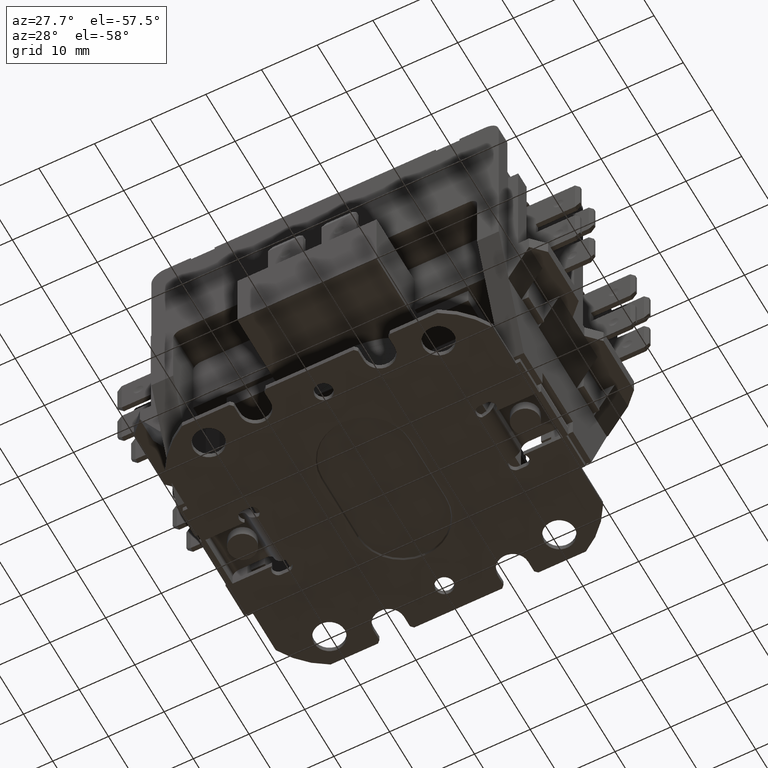
[diagram: clean part render]
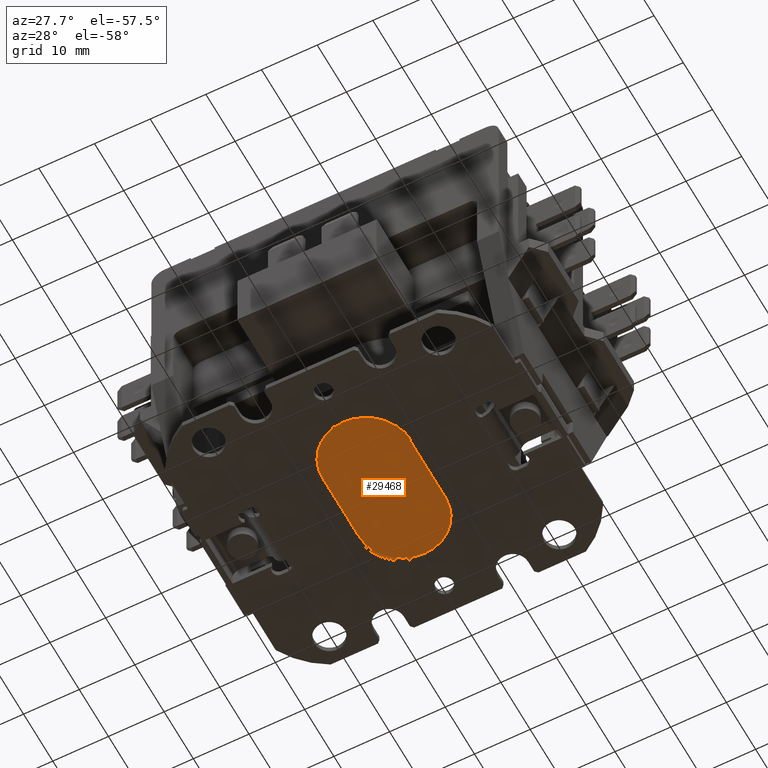
[diagram: same view with one face highlighted and labeled with its STEP entity id]
A machine part, auxiliary view. The second image highlights one B-rep face of the part: STEP entity #29468.
In plain terms, the highlighted planar face has unit normal (-0, 0, 1).
Its self-contained STEP definition (entity closure, byte-faithful):
#2312=LINE($,#51381,#5142);
#2313=LINE($,#51385,#5143);
#2314=LINE($,#51389,#5144);
#2315=LINE($,#51392,#5145);
#5142=VECTOR($,#38244,1.236);
#5143=VECTOR($,#38247,0.00200000000000022);
#5144=VECTOR($,#38250,1.236);
#5145=VECTOR($,#38253,0.00200000000000022);
#6796=PLANE($,#31754);
#8458=FACE_OUTER_BOUND($,#10184,.T.);
#10184=EDGE_LOOP($,(#24018,#24019,#24020,#24021,#24022,#24023,#24024,#24025));
#11463=CIRCLE($,#31755,0.779);
#11464=CIRCLE($,#31756,0.779);
#11465=CIRCLE($,#31757,0.779);
#11466=CIRCLE($,#31758,0.779);
#13811=VERTEX_POINT($,#51377);
#13812=VERTEX_POINT($,#51378);
#13813=VERTEX_POINT($,#51380);
#13814=VERTEX_POINT($,#51382);
#13815=VERTEX_POINT($,#51384);
#13816=VERTEX_POINT($,#51386);
#13817=VERTEX_POINT($,#51388);
#13818=VERTEX_POINT($,#51390);
#17419=EDGE_CURVE($,#13811,#13812,#11463,.T.);
#17420=EDGE_CURVE($,#13812,#13813,#2312,.T.);
#17421=EDGE_CURVE($,#13813,#13814,#11464,.T.);
#17422=EDGE_CURVE($,#13814,#13815,#2313,.T.);
#17423=EDGE_CURVE($,#13815,#13816,#11465,.T.);
#17424=EDGE_CURVE($,#13816,#13817,#2314,.T.);
#17425=EDGE_CURVE($,#13817,#13818,#11466,.T.);
#17426=EDGE_CURVE($,#13818,#13811,#2315,.T.);
#24018=ORIENTED_EDGE($,*,*,#17419,.T.);
#24019=ORIENTED_EDGE($,*,*,#17420,.T.);
#24020=ORIENTED_EDGE($,*,*,#17421,.T.);
#24021=ORIENTED_EDGE($,*,*,#17422,.T.);
#24022=ORIENTED_EDGE($,*,*,#17423,.T.);
#24023=ORIENTED_EDGE($,*,*,#17424,.T.);
#24024=ORIENTED_EDGE($,*,*,#17425,.T.);
#24025=ORIENTED_EDGE($,*,*,#17426,.T.);
#29468=ADVANCED_FACE($,(#8458),#6796,.F.);
#31754=AXIS2_PLACEMENT_3D($,#51376,#38240,#38241);
#31755=AXIS2_PLACEMENT_3D($,#51379,#38242,#38243);
#31756=AXIS2_PLACEMENT_3D($,#51383,#38245,#38246);
#31757=AXIS2_PLACEMENT_3D($,#51387,#38248,#38249);
#31758=AXIS2_PLACEMENT_3D($,#51391,#38251,#38252);
#38240=DIRECTION('center_axis',(-2.14704053588466E-032,4.74525105754118E-033,
1.));
#38241=DIRECTION('ref_axis',(-6.12323399573677E-017,1.,0.));
#38242=DIRECTION('center_axis',(3.74939945665464E-033,2.29584502165847E-049,
-1.));
#38243=DIRECTION('ref_axis',(-1.,-9.79339750051752E-016,-3.74939945665464E-033));
#38244=DIRECTION($,(-1.60812264967664E-016,-1.,-8.32533921059007E-049));
#38245=DIRECTION('center_axis',(3.74939945665464E-033,2.29584502165847E-049,
-1.));
#38246=DIRECTION('ref_axis',(-1.54941575756146E-015,1.,-5.57979409736723E-048));
#38247=DIRECTION($,(-1.,4.44250022114981E-013,-3.74939945665464E-033));
#38248=DIRECTION('center_axis',(3.74939945665464E-033,2.29584502165847E-049,
-1.));
#38249=DIRECTION('ref_axis',(1.,9.79339750051751E-016,3.74939945665464E-033));
#38250=DIRECTION($,(-5.57778689482274E-016,1.,-1.86175061311253E-048));
#38251=DIRECTION('center_axis',(3.74939945665464E-033,2.29584502165847E-049,
-1.));
#38252=DIRECTION('ref_axis',(4.09263742542045E-016,-1.,1.30490875174974E-048));
#38253=DIRECTION($,(1.,2.21883792660039E-013,3.74939945665464E-033));
#51376=CARTESIAN_POINT('Origin',(1.66533453693773E-016,-1.49599748677072E-016,
8.32667268468867E-017));
#51377=CARTESIAN_POINT('',(0.000999999999999804,1.397,8.32667268468867E-017));
#51378=CARTESIAN_POINT('',(0.780000000000001,0.618000000000002,8.32667268468867E-017));
#51379=CARTESIAN_POINT('Origin',(0.0010000000000003,0.618000000000001,8.32667268468867E-017));
#51380=CARTESIAN_POINT('',(0.780000000000001,-0.618,8.32667268468867E-017));
#51381=CARTESIAN_POINT($,(0.780000000000001,0.618000000000002,8.32667268468867E-017));
#51382=CARTESIAN_POINT('',(0.00100000000000175,-1.397,8.32667268468867E-017));
#51383=CARTESIAN_POINT('Origin',(0.00100000000000037,-0.618000000000001,
8.32667268468867E-017));
#51384=CARTESIAN_POINT('',(-0.000999999999998472,-1.397,8.32667268468867E-017));
#51385=CARTESIAN_POINT($,(0.00100000000000175,-1.397,8.32667268468867E-017));
#51386=CARTESIAN_POINT('',(-0.780000000000001,-0.618000000000002,8.32667268468867E-017));
#51387=CARTESIAN_POINT('Origin',(-0.000999999999999852,-0.618000000000001,
8.32667268468867E-017));
#51388=CARTESIAN_POINT('',(-0.780000000000002,0.618,8.32667268468867E-017));
#51389=CARTESIAN_POINT($,(-0.780000000000001,-0.618000000000002,8.32667268468867E-017));
#51390=CARTESIAN_POINT('',(-0.00100000000000042,1.397,8.32667268468867E-017));
#51391=CARTESIAN_POINT('Origin',(-0.000999999999999928,0.618000000000001,
8.32667268468867E-017));
#51392=CARTESIAN_POINT($,(-0.00100000000000042,1.397,8.32667268468867E-017));